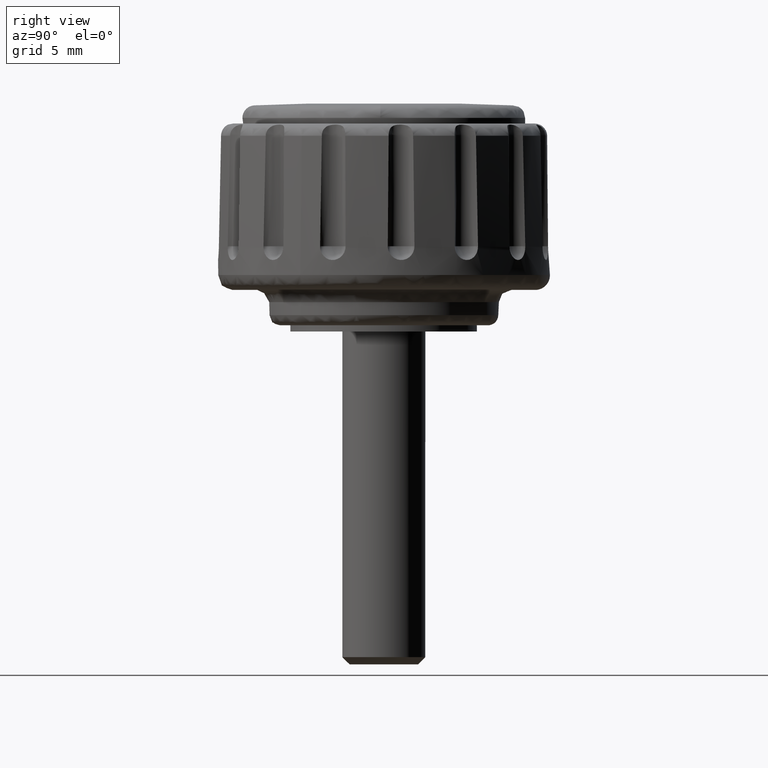
[diagram: clean part render]
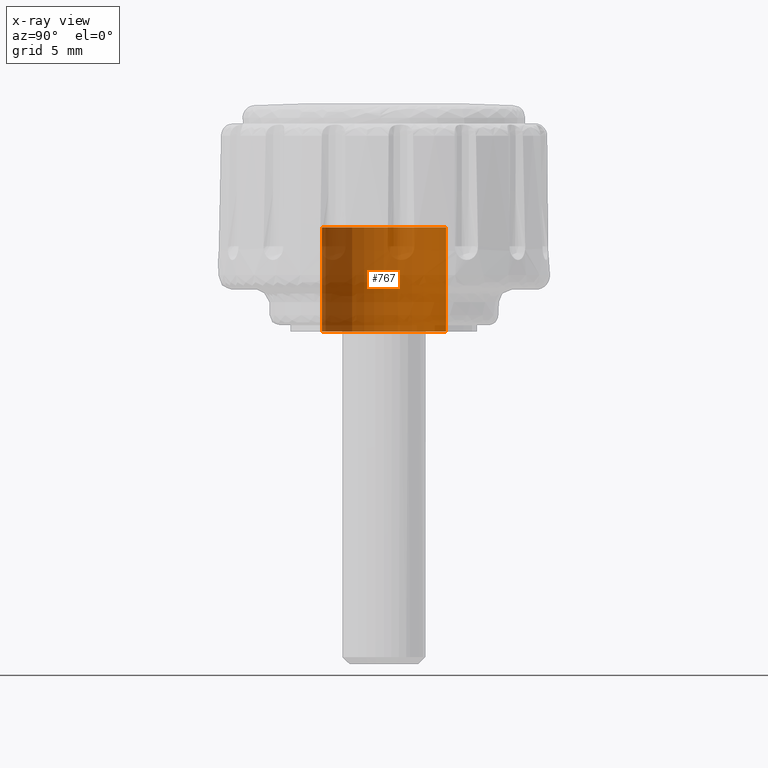
[diagram: x-ray — body ghosted, one internal face saturated and labeled with its STEP entity id]
A machine part, right view, then the same camera in x-ray: the body is ghosted and one INTERNAL B-rep face — a face not visible from any outside direction — is saturated and labeled: STEP entity #767.
In plain terms, the highlighted face is a freeform B-spline surface patch.
Its self-contained STEP definition (entity closure, byte-faithful):
#661=CARTESIAN_POINT('',(0.398308843258064,-2.973774009341733,5.125000000000003));
#662=CARTESIAN_POINT('',(0.376143455190834,-2.976408701705628,5.125000000000001));
#663=CARTESIAN_POINT('',(0.268844185913933,-2.989162846345817,5.125000000000001));
#664=CARTESIAN_POINT('',(0.183145618604571,-2.994404395265600,5.125000000000001));
#665=CARTESIAN_POINT('',(-2.811258776661029,-3.177550013870171,5.125000000000001));
#666=CARTESIAN_POINT('',(-2.994404395265600,-0.183145618604571,5.125000000000001));
#667=CARTESIAN_POINT('',(-3.177550013870171,2.811258776661029,5.125000000000001));
#668=CARTESIAN_POINT('',(-0.161610417674348,2.995721544579958,5.124999999999999));
#669=CARTESIAN_POINT('',(-0.140203140115947,2.997030869765720,5.125000000000001));
#670=CARTESIAN_POINT('',(0.398308843258064,-2.973774009341733,-0.128125000000001));
#671=CARTESIAN_POINT('',(0.376143455190834,-2.976408701705628,-0.128125000000001));
#672=CARTESIAN_POINT('',(0.268844185913933,-2.989162846345817,-0.128125000000001));
#673=CARTESIAN_POINT('',(0.183145618604571,-2.994404395265600,-0.128125000000001));
#674=CARTESIAN_POINT('',(-2.811258776661029,-3.177550013870171,-0.128125000000001));
#675=CARTESIAN_POINT('',(-2.994404395265600,-0.183145618604571,-0.128125000000001));
#676=CARTESIAN_POINT('',(-3.177550013870171,2.811258776661029,-0.128125000000001));
#677=CARTESIAN_POINT('',(-0.161610417674348,2.995721544579958,-0.128125000000001));
#678=CARTESIAN_POINT('',(-0.140203140115947,2.997030869765720,-0.128125000000001));
#686=(BOUNDED_SURFACE()B_SPLINE_SURFACE(2,1,((#661,#670),(#662,#671),(#663,#672),(#664,#673),(#665,#674),(#666,#675),(#667,#676),(#668,#677),(#669,#678)),.UNSPECIFIED.,.F.,.F.,.U.)B_SPLINE_SURFACE_WITH_KNOTS((3,1,2,2,1,3),(2,2),(0.0,0.050695437772393,0.249517947711479,5.220080696188618,10.190643444665760,10.241348902250540),(0.0,5.253125000000003),.UNSPECIFIED.)GEOMETRIC_REPRESENTATION_ITEM()RATIONAL_B_SPLINE_SURFACE(((0.972009247328768,0.972009247328768),(0.974757524061947,0.974757524061947),(0.988284271247462,0.988284271247462),(1.0,1.0),(0.707106781186548,0.707106781186548),(1.0,1.0),(0.707106781186548,0.707106781186548),(1.002987847741781,1.002987847741781),(1.005975695483561,1.005975695483561)))REPRESENTATION_ITEM('')SURFACE());
#687=CARTESIAN_POINT('',(0.354098922920265,-2.979029028521241,4.999999999999969));
#688=VERTEX_POINT('',#687);
#689=CARTESIAN_POINT('',(-3.0,0.0,5.0));
#690=VERTEX_POINT('',#689);
#691=CARTESIAN_POINT('',(0.354098922920265,-2.979029028521242,4.999999999999969));
#692=CARTESIAN_POINT('',(0.177670448444696,-3.000000000000000,5.0));
#693=CARTESIAN_POINT('',(0.0,-3.0,5.0));
#694=CARTESIAN_POINT('',(-3.0,-3.0,5.000000000000001));
#695=CARTESIAN_POINT('',(-3.0,0.0,5.0));
#703=(BOUNDED_CURVE()B_SPLINE_CURVE(2,(#691,#692,#693,#694,#695),.UNSPECIFIED.,.F.,.U.)B_SPLINE_CURVE_WITH_KNOTS((3,2,3),(0.229562688018382,0.250000000000000,0.500000000000000),.UNSPECIFIED.)CURVE()GEOMETRIC_REPRESENTATION_ITEM()RATIONAL_B_SPLINE_CURVE((0.956027174622461,0.976056199639236,1.0,0.707106781186548,1.0))REPRESENTATION_ITEM(''));
#704=EDGE_CURVE('',#688,#690,#703,.T.);
#705=ORIENTED_EDGE('',*,*,#704,.F.);
#706=CARTESIAN_POINT('',(0.354098968414867,-2.979029023113634,1.419714E-017));
#707=VERTEX_POINT('',#706);
#708=CARTESIAN_POINT('',(0.354098922920265,-2.979029028521241,4.999999999999969));
#709=CARTESIAN_POINT('',(0.354098968414867,-2.979029023113634,1.419714E-017));
#710=QUASI_UNIFORM_CURVE('',1,(#708,#709),.UNSPECIFIED.,.F.,.U.);
#711=EDGE_CURVE('',#688,#707,#710,.T.);
#712=ORIENTED_EDGE('',*,*,#711,.T.);
#713=CARTESIAN_POINT('',(-3.0,0.0,0.0));
#714=VERTEX_POINT('',#713);
#715=CARTESIAN_POINT('',(0.354098968414868,-2.979029023113634,1.419714E-017));
#716=CARTESIAN_POINT('',(0.177670471432470,-3.000000000000000,0.0));
#717=CARTESIAN_POINT('',(0.0,-3.0,0.0));
#718=CARTESIAN_POINT('',(-3.0,-3.0,0.0));
#719=CARTESIAN_POINT('',(-3.0,0.0,0.0));
#727=(BOUNDED_CURVE()B_SPLINE_CURVE(2,(#715,#716,#717,#718,#719),.UNSPECIFIED.,.F.,.U.)B_SPLINE_CURVE_WITH_KNOTS((3,2,3),(0.229562685437427,0.250000000000000,0.500000000000000),.UNSPECIFIED.)CURVE()GEOMETRIC_REPRESENTATION_ITEM()RATIONAL_B_SPLINE_CURVE((0.956027169563674,0.976056196615460,1.0,0.707106781186548,1.0))REPRESENTATION_ITEM(''));
#728=EDGE_CURVE('',#707,#714,#727,.T.);
#729=ORIENTED_EDGE('',*,*,#728,.T.);
#730=CARTESIAN_POINT('',(-0.183140811187641,2.994404689292069,-2.775558E-016));
#731=VERTEX_POINT('',#730);
#732=CARTESIAN_POINT('',(-3.0,0.0,0.0));
#733=CARTESIAN_POINT('',(-3.000000000000000,2.822122740003906,0.0));
#734=CARTESIAN_POINT('',(-0.183140811187641,2.994404689292070,-2.775558E-016));
#742=(BOUNDED_CURVE()B_SPLINE_CURVE(2,(#732,#733,#734),.UNSPECIFIED.,.F.,.U.)B_SPLINE_CURVE_WITH_KNOTS((3,3),(0.500000000000000,0.739333239260173),.UNSPECIFIED.)CURVE()GEOMETRIC_REPRESENTATION_ITEM()RATIONAL_B_SPLINE_CURVE((1.0,0.719603668736151,0.976072635376666))REPRESENTATION_ITEM(''));
#743=EDGE_CURVE('',#714,#731,#742,.T.);
#744=ORIENTED_EDGE('',*,*,#743,.T.);
#745=CARTESIAN_POINT('',(-0.183140752485810,2.994404692882236,5.000000000000040));
#746=VERTEX_POINT('',#745);
#747=CARTESIAN_POINT('',(-0.183140752485810,2.994404692882236,5.000000000000040));
#748=CARTESIAN_POINT('',(-0.183140811187641,2.994404689292069,-2.775558E-016));
#749=QUASI_UNIFORM_CURVE('',1,(#747,#748),.UNSPECIFIED.,.F.,.U.);
#750=EDGE_CURVE('',#746,#731,#749,.T.);
#751=ORIENTED_EDGE('',*,*,#750,.F.);
#752=CARTESIAN_POINT('',(-3.0,0.0,5.0));
#753=CARTESIAN_POINT('',(-3.000000000000000,2.822122795431723,4.999999999999999));
#754=CARTESIAN_POINT('',(-0.183140752485810,2.994404692882236,5.000000000000040));
#762=(BOUNDED_CURVE()B_SPLINE_CURVE(2,(#752,#753,#754),.UNSPECIFIED.,.F.,.U.)B_SPLINE_CURVE_WITH_KNOTS((3,3),(0.500000000000000,0.739333242642754),.UNSPECIFIED.)CURVE()GEOMETRIC_REPRESENTATION_ITEM()RATIONAL_B_SPLINE_CURVE((1.0,0.719603664773210,0.976072642626200))REPRESENTATION_ITEM(''));
#763=EDGE_CURVE('',#690,#746,#762,.T.);
#764=ORIENTED_EDGE('',*,*,#763,.F.);
#765=EDGE_LOOP('',(#705,#712,#729,#744,#751,#764));
#766=FACE_OUTER_BOUND('',#765,.T.);
#767=ADVANCED_FACE('',(#766),#686,.F.);